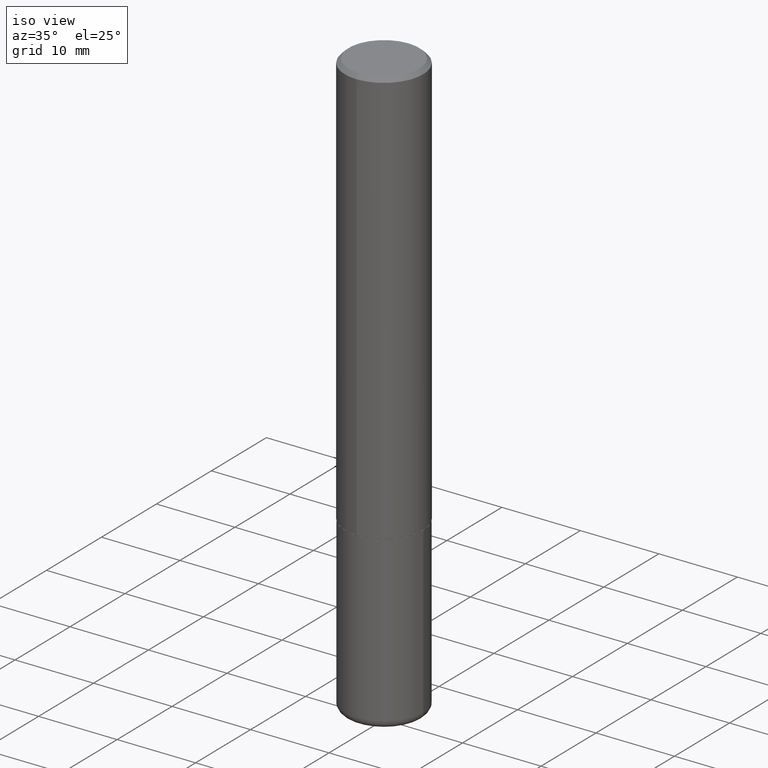
[diagram: clean part render]
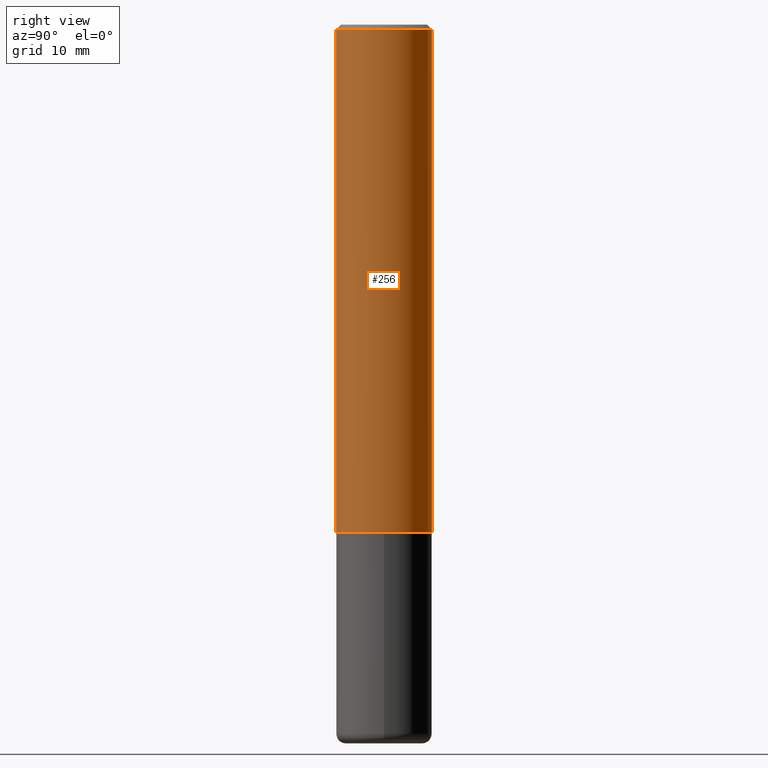
[diagram: tour spotlight — one face highlighted and labeled with its STEP entity id]
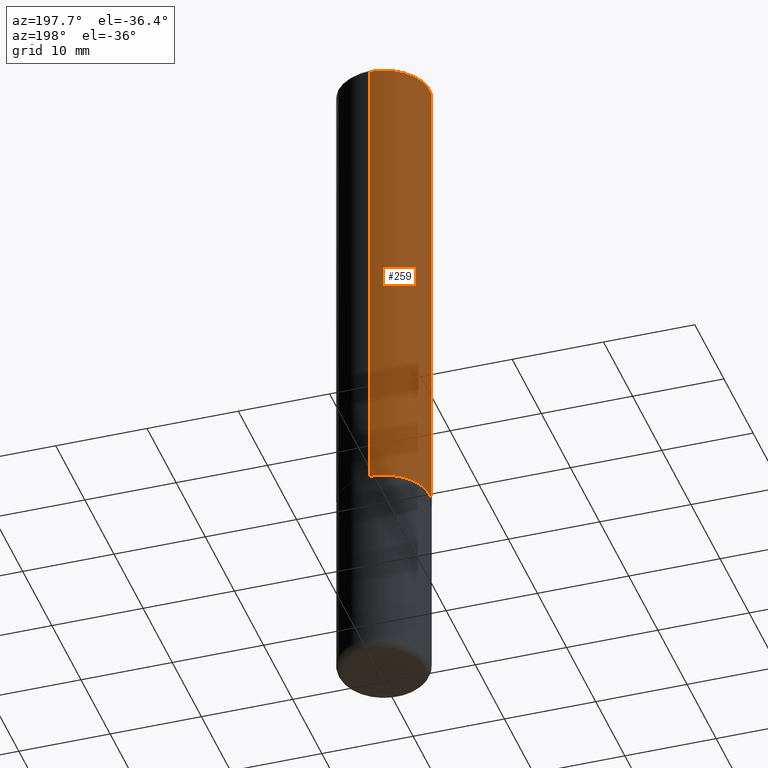
[diagram: tour spotlight — one face highlighted and labeled with its STEP entity id]
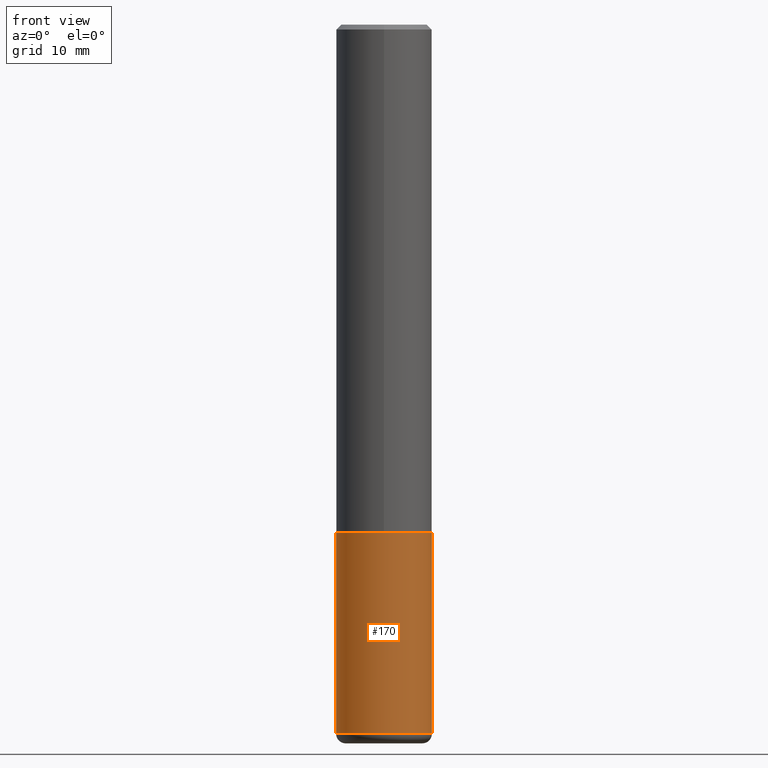
[diagram: tour spotlight — one face highlighted and labeled with its STEP entity id]
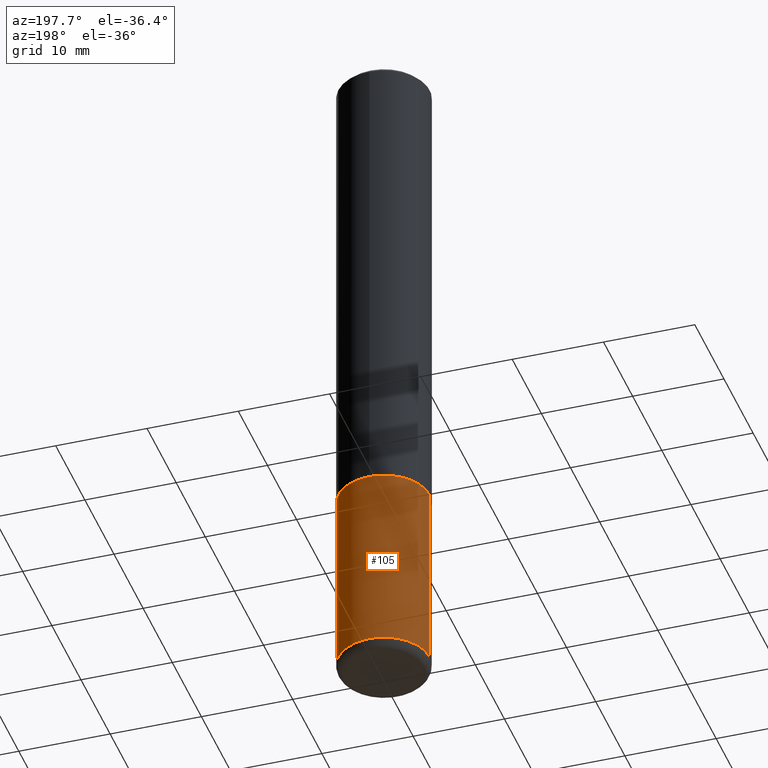
[diagram: tour spotlight — one face highlighted and labeled with its STEP entity id]
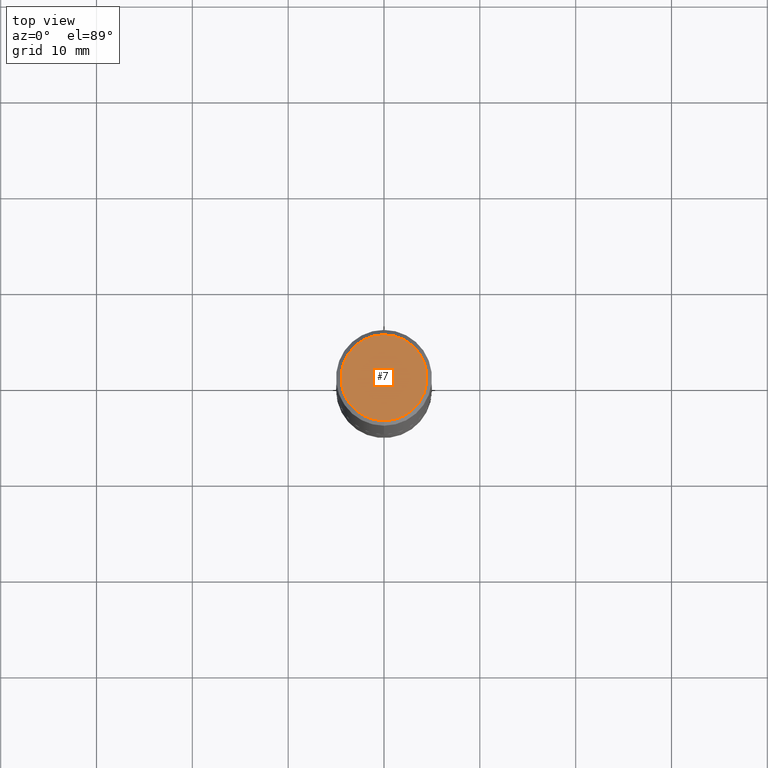
[diagram: tour spotlight — one face highlighted and labeled with its STEP entity id]
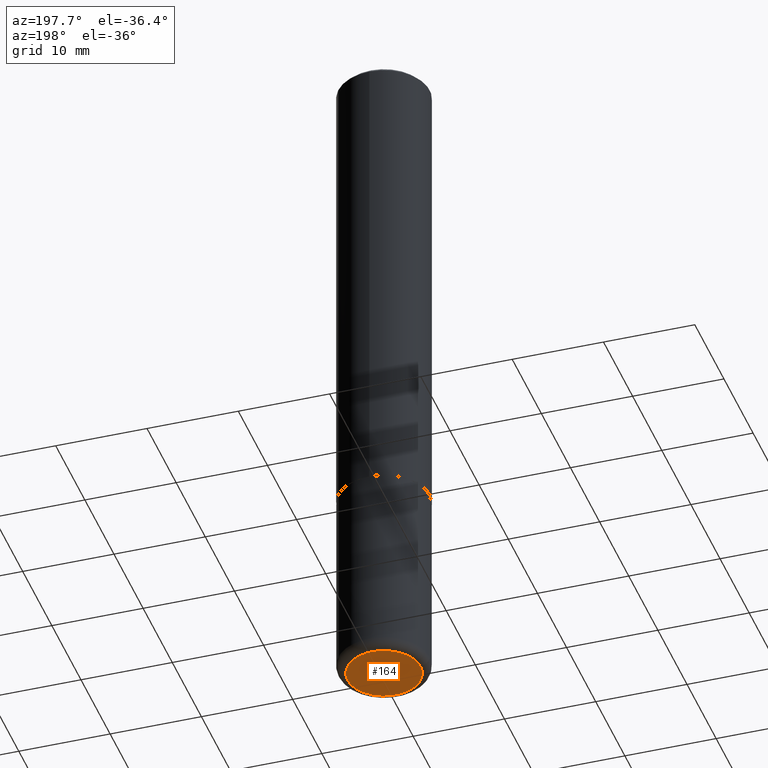
[diagram: tour spotlight — one face highlighted and labeled with its STEP entity id]
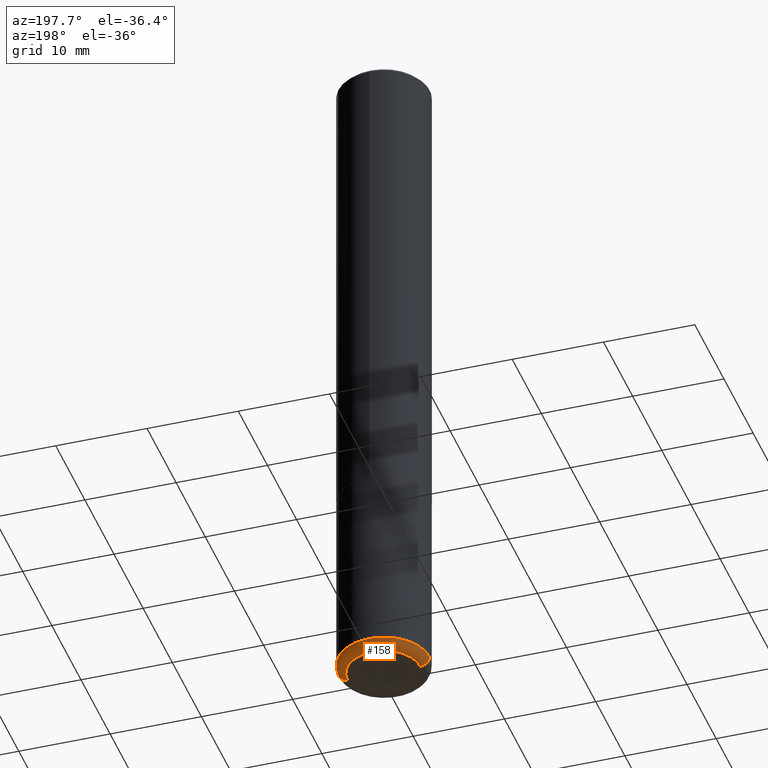
[diagram: tour spotlight — one face highlighted and labeled with its STEP entity id]
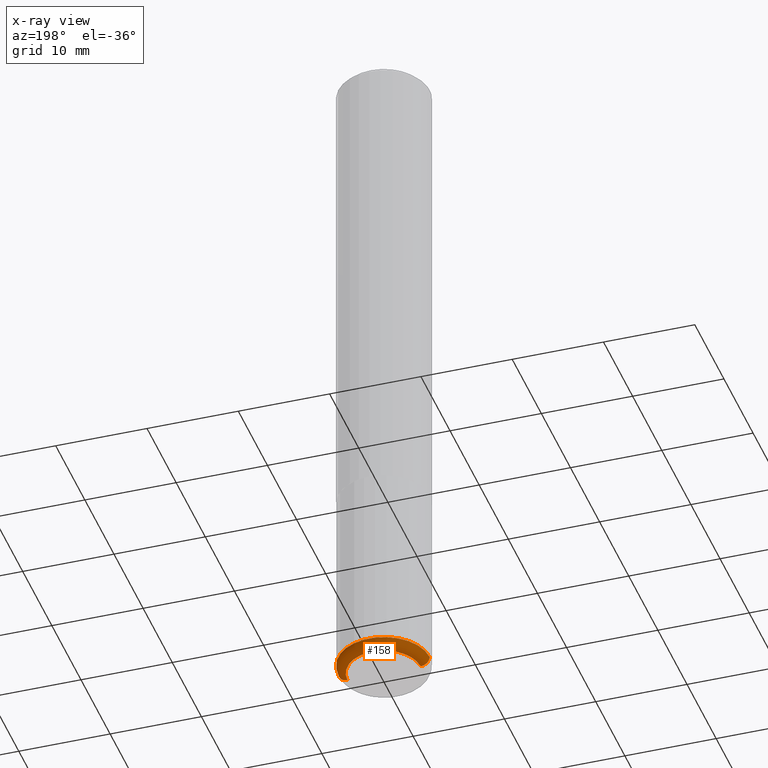
[diagram: x-ray of the same camera — body ghosted, this tour face saturated]
A machine part: a face-by-face anatomy tour. The part has 14 B-rep faces; the first image is the clean iso view, then the 7 largest visible faces are spotlighted one at a time (largest first), each with its STEP entity span.

Face 1 — right view, entity #256. In plain terms, the highlighted cylindrical surface (partial cylindrical patch) has radius 5 mm, axis along (-0, 0, 1).
Definition (entity closure, byte-faithful):
#8 = LINE ( 'NONE', #175, #362 ) ;
#21 = DIRECTION ( 'NONE',  ( -6.982962677686265922E-15, -1.000000000000000000, 4.163344669033670112E-15 ) ) ;
#43 = EDGE_LOOP ( 'NONE', ( #177, #228, #84, #182 ) ) ;
#58 = DIRECTION ( 'NONE',  ( -6.982962677686265922E-15, -1.000000000000000000, 3.492751155082254917E-15 ) ) ;
#65 = CARTESIAN_POINT ( 'NONE',  ( 1.374596203102541608E-15, 0.1968499999999999139, -0.02000000000000072900 ) ) ;
#78 = EDGE_CURVE ( 'NONE', #121, #314, #416, .T. ) ;
#84 = ORIENTED_EDGE ( 'NONE', *, *, #78, .F. ) ;
#86 = CARTESIAN_POINT ( 'NONE',  ( 0.000000000000000000, 0.000000000000000000, 0.000000000000000000 ) ) ;
#94 = VERTEX_POINT ( 'NONE', #388 ) ;
#95 = EDGE_CURVE ( 'NONE', #379, #314, #365, .T. ) ;
#100 = AXIS2_PLACEMENT_3D ( 'NONE', #140, #143, #102 ) ;
#102 = DIRECTION ( 'NONE',  ( -6.982962677686265922E-15, -1.000000000000000000, 3.491137977679280212E-15 ) ) ;
#121 = VERTEX_POINT ( 'NONE', #357 ) ;
#140 = CARTESIAN_POINT ( 'NONE',  ( 4.889164196489240128E-31, -6.985502310164524180E-17, -0.02000000000000004205 ) ) ;
#141 = DIRECTION ( 'NONE',  ( -2.444582098244614651E-29, 3.492751155082255311E-15, 1.000000000000000000 ) ) ;
#143 = DIRECTION ( 'NONE',  ( -2.444582098244614651E-29, 3.492751155082254917E-15, 1.000000000000000000 ) ) ;
#152 = AXIS2_PLACEMENT_3D ( 'NONE', #218, #311, #21 ) ;
#162 = AXIS2_PLACEMENT_3D ( 'NONE', #86, #345, #58 ) ;
#175 = CARTESIAN_POINT ( 'NONE',  ( -1.374596203102542200E-15, -0.1968500000000001082, 6.875480648779422671E-16 ) ) ;
#177 = ORIENTED_EDGE ( 'NONE', *, *, #204, .T. ) ;
#182 = ORIENTED_EDGE ( 'NONE', *, *, #366, .F. ) ;
#204 = EDGE_CURVE ( 'NONE', #94, #379, #249, .T. ) ;
#218 = CARTESIAN_POINT ( 'NONE',  ( 5.098664882308792093E-29, -7.284831084155059258E-15, -2.085699999999999665 ) ) ;
#220 = CYLINDRICAL_SURFACE ( 'NONE', #162, 0.1968500000000001082 ) ;
#221 = VECTOR ( 'NONE', #141, 39.37007874015748143 ) ;
#228 = ORIENTED_EDGE ( 'NONE', *, *, #95, .T. ) ;
#249 = CIRCLE ( 'NONE', #152, 0.1968500000000002470 ) ;
#256 = ADVANCED_FACE ( 'NONE', ( #373 ), #220, .T. ) ;
#267 = CARTESIAN_POINT ( 'NONE',  ( 1.398703375343784214E-15, 0.1968499999999930028, -2.085700000000000554 ) ) ;
#304 = DIRECTION ( 'NONE',  ( -2.444582098244614651E-29, 3.492751155082255311E-15, 1.000000000000000000 ) ) ;
#311 = DIRECTION ( 'NONE',  ( -2.444582098244614651E-29, 3.492751155082254917E-15, 1.000000000000000000 ) ) ;
#314 = VERTEX_POINT ( 'NONE', #65 ) ;
#345 = DIRECTION ( 'NONE',  ( -2.444582098244614651E-29, 3.492751155082254917E-15, 1.000000000000000000 ) ) ;
#357 = CARTESIAN_POINT ( 'NONE',  ( -1.350489030861325232E-15, -0.1968500000000000527, -0.01999999999999935510 ) ) ;
#362 = VECTOR ( 'NONE', #304, 39.37007874015748143 ) ;
#365 = LINE ( 'NONE', #393, #221 ) ;
#366 = EDGE_CURVE ( 'NONE', #94, #121, #8, .T. ) ;
#373 = FACE_OUTER_BOUND ( 'NONE', #43, .T. ) ;
#379 = VERTEX_POINT ( 'NONE', #267 ) ;
#388 = CARTESIAN_POINT ( 'NONE',  ( -1.374596203102492304E-15, -0.1968500000000075190, -2.085699999999999221 ) ) ;
#393 = CARTESIAN_POINT ( 'NONE',  ( 1.398703375343757788E-15, 0.1968500000000001082, -6.875480648779422671E-16 ) ) ;
#416 = CIRCLE ( 'NONE', #100, 0.1968499999999999694 ) ;

Face 2 — auxiliary view, entity #259. In plain terms, the highlighted cylindrical surface (partial cylindrical patch) has radius 5 mm, axis along (-0, 0, 1).
Definition (entity closure, byte-faithful):
#1 = ORIENTED_EDGE ( 'NONE', *, *, #225, .F. ) ;
#8 = LINE ( 'NONE', #175, #362 ) ;
#54 = DIRECTION ( 'NONE',  ( -6.982962677686265922E-15, -1.000000000000000000, 3.491137977679280212E-15 ) ) ;
#65 = CARTESIAN_POINT ( 'NONE',  ( 1.374596203102541608E-15, 0.1968499999999999139, -0.02000000000000072900 ) ) ;
#93 = CYLINDRICAL_SURFACE ( 'NONE', #369, 0.1968500000000001082 ) ;
#94 = VERTEX_POINT ( 'NONE', #388 ) ;
#95 = EDGE_CURVE ( 'NONE', #379, #314, #365, .T. ) ;
#108 = AXIS2_PLACEMENT_3D ( 'NONE', #341, #248, #118 ) ;
#112 = ORIENTED_EDGE ( 'NONE', *, *, #194, .T. ) ;
#118 = DIRECTION ( 'NONE',  ( -6.982962677686265922E-15, -1.000000000000000000, 4.163344669033670112E-15 ) ) ;
#121 = VERTEX_POINT ( 'NONE', #357 ) ;
#123 = CARTESIAN_POINT ( 'NONE',  ( 4.889164196489240128E-31, -6.985502310164524180E-17, -0.02000000000000004205 ) ) ;
#128 = EDGE_LOOP ( 'NONE', ( #398, #112, #312, #1 ) ) ;
#141 = DIRECTION ( 'NONE',  ( -2.444582098244614651E-29, 3.492751155082255311E-15, 1.000000000000000000 ) ) ;
#175 = CARTESIAN_POINT ( 'NONE',  ( -1.374596203102542200E-15, -0.1968500000000001082, 6.875480648779422671E-16 ) ) ;
#180 = CIRCLE ( 'NONE', #108, 0.1968500000000002470 ) ;
#194 = EDGE_CURVE ( 'NONE', #379, #94, #180, .T. ) ;
#202 = DIRECTION ( 'NONE',  ( -6.982962677686265922E-15, -1.000000000000000000, 3.492751155082254917E-15 ) ) ;
#207 = AXIS2_PLACEMENT_3D ( 'NONE', #123, #278, #54 ) ;
#221 = VECTOR ( 'NONE', #141, 39.37007874015748143 ) ;
#224 = CARTESIAN_POINT ( 'NONE',  ( 0.000000000000000000, 0.000000000000000000, 0.000000000000000000 ) ) ;
#225 = EDGE_CURVE ( 'NONE', #314, #121, #344, .T. ) ;
#248 = DIRECTION ( 'NONE',  ( -2.444582098244614651E-29, 3.492751155082254917E-15, 1.000000000000000000 ) ) ;
#257 = FACE_OUTER_BOUND ( 'NONE', #128, .T. ) ;
#259 = ADVANCED_FACE ( 'NONE', ( #257 ), #93, .T. ) ;
#267 = CARTESIAN_POINT ( 'NONE',  ( 1.398703375343784214E-15, 0.1968499999999930028, -2.085700000000000554 ) ) ;
#278 = DIRECTION ( 'NONE',  ( -2.444582098244614651E-29, 3.492751155082254917E-15, 1.000000000000000000 ) ) ;
#304 = DIRECTION ( 'NONE',  ( -2.444582098244614651E-29, 3.492751155082255311E-15, 1.000000000000000000 ) ) ;
#312 = ORIENTED_EDGE ( 'NONE', *, *, #366, .T. ) ;
#314 = VERTEX_POINT ( 'NONE', #65 ) ;
#341 = CARTESIAN_POINT ( 'NONE',  ( 5.098664882308792093E-29, -7.284831084155059258E-15, -2.085699999999999665 ) ) ;
#344 = CIRCLE ( 'NONE', #207, 0.1968499999999999694 ) ;
#346 = DIRECTION ( 'NONE',  ( -2.444582098244614651E-29, 3.492751155082254917E-15, 1.000000000000000000 ) ) ;
#357 = CARTESIAN_POINT ( 'NONE',  ( -1.350489030861325232E-15, -0.1968500000000000527, -0.01999999999999935510 ) ) ;
#362 = VECTOR ( 'NONE', #304, 39.37007874015748143 ) ;
#365 = LINE ( 'NONE', #393, #221 ) ;
#366 = EDGE_CURVE ( 'NONE', #94, #121, #8, .T. ) ;
#369 = AXIS2_PLACEMENT_3D ( 'NONE', #224, #346, #202 ) ;
#379 = VERTEX_POINT ( 'NONE', #267 ) ;
#388 = CARTESIAN_POINT ( 'NONE',  ( -1.374596203102492304E-15, -0.1968500000000075190, -2.085699999999999221 ) ) ;
#393 = CARTESIAN_POINT ( 'NONE',  ( 1.398703375343757788E-15, 0.1968500000000001082, -6.875480648779422671E-16 ) ) ;
#398 = ORIENTED_EDGE ( 'NONE', *, *, #95, .F. ) ;

Face 3 — front view, entity #170. In plain terms, the highlighted cylindrical surface (partial cylindrical patch) has radius 5 mm, axis along (-0, 0, 1).
Definition (entity closure, byte-faithful):
#14 = DIRECTION ( 'NONE',  ( -2.445468806185136597E-29, 3.491481338843145583E-15, 1.000000000000000000 ) ) ;
#15 = DIRECTION ( 'NONE',  ( -2.445468806185136877E-29, 3.491481338843145188E-15, 1.000000000000000000 ) ) ;
#17 = AXIS2_PLACEMENT_3D ( 'NONE', #363, #266, #139 ) ;
#26 = VERTEX_POINT ( 'NONE', #268 ) ;
#34 = EDGE_CURVE ( 'NONE', #241, #253, #135, .T. ) ;
#35 = VECTOR ( 'NONE', #211, 39.37007874015748143 ) ;
#49 = AXIS2_PLACEMENT_3D ( 'NONE', #186, #80, #184 ) ;
#59 = CARTESIAN_POINT ( 'NONE',  ( -0.1968500000000000805, -8.773378357241862315E-15, -2.913399999999999768 ) ) ;
#63 = CIRCLE ( 'NONE', #17, 0.1968500000000000250 ) ;
#75 = EDGE_LOOP ( 'NONE', ( #339, #406, #114, #226 ) ) ;
#80 = DIRECTION ( 'NONE',  ( -2.445468806185136597E-29, 3.491481338843145583E-15, 1.000000000000000000 ) ) ;
#89 = CARTESIAN_POINT ( 'NONE',  ( -0.1968500000000000250, -7.330174545831047333E-15, -2.086699999999999999 ) ) ;
#113 = DIRECTION ( 'NONE',  ( 1.000000000000000000, -6.982962677686266711E-15, 0.000000000000000000 ) ) ;
#114 = ORIENTED_EDGE ( 'NONE', *, *, #265, .T. ) ;
#116 = EDGE_CURVE ( 'NONE', #241, #155, #282, .T. ) ;
#135 = LINE ( 'NONE', #335, #205 ) ;
#139 = DIRECTION ( 'NONE',  ( 1.000000000000000000, -6.982962677686267499E-15, 0.000000000000000000 ) ) ;
#155 = VERTEX_POINT ( 'NONE', #412 ) ;
#170 = ADVANCED_FACE ( 'NONE', ( #288 ), #244, .T. ) ;
#184 = DIRECTION ( 'NONE',  ( 1.000000000000000000, -6.982962677686266711E-15, 4.876176775795935793E-29 ) ) ;
#186 = CARTESIAN_POINT ( 'NONE',  ( 0.000000000000000000, 0.000000000000000000, 0.000000000000000000 ) ) ;
#192 = AXIS2_PLACEMENT_3D ( 'NONE', #399, #14, #113 ) ;
#205 = VECTOR ( 'NONE', #15, 39.37007874015748143 ) ;
#211 = DIRECTION ( 'NONE',  ( -2.445468806185136877E-29, 3.491481338843145188E-15, 1.000000000000000000 ) ) ;
#226 = ORIENTED_EDGE ( 'NONE', *, *, #367, .F. ) ;
#241 = VERTEX_POINT ( 'NONE', #59 ) ;
#244 = CYLINDRICAL_SURFACE ( 'NONE', #49, 0.1968500000000000527 ) ;
#253 = VERTEX_POINT ( 'NONE', #89 ) ;
#265 = EDGE_CURVE ( 'NONE', #155, #26, #389, .T. ) ;
#266 = DIRECTION ( 'NONE',  ( -2.445468806185136597E-29, 3.491481338843145583E-15, 1.000000000000000000 ) ) ;
#268 = CARTESIAN_POINT ( 'NONE',  ( 0.1968500000000000250, -8.660270312866532536E-15, -2.086699999999999999 ) ) ;
#282 = CIRCLE ( 'NONE', #192, 0.1968500000000000527 ) ;
#288 = FACE_OUTER_BOUND ( 'NONE', #75, .T. ) ;
#335 = CARTESIAN_POINT ( 'NONE',  ( -0.1968500000000000527, 1.398703375343757590E-15, -9.682923725166785079E-30 ) ) ;
#339 = ORIENTED_EDGE ( 'NONE', *, *, #34, .F. ) ;
#363 = CARTESIAN_POINT ( 'NONE',  ( 5.102959757866523939E-29, -7.285674109763990928E-15, -2.086699999999999999 ) ) ;
#367 = EDGE_CURVE ( 'NONE', #253, #26, #63, .T. ) ;
#387 = CARTESIAN_POINT ( 'NONE',  ( 0.1968500000000000527, -1.374596203102542003E-15, 9.598753983154302260E-30 ) ) ;
#389 = LINE ( 'NONE', #387, #35 ) ;
#399 = CARTESIAN_POINT ( 'NONE',  ( 7.124628819939776708E-29, -1.017208173258561931E-14, -2.913399999999999768 ) ) ;
#406 = ORIENTED_EDGE ( 'NONE', *, *, #116, .T. ) ;
#412 = CARTESIAN_POINT ( 'NONE',  ( 0.1968500000000000805, -1.154667793568816250E-14, -2.913399999999999768 ) ) ;

Face 4 — auxiliary view, entity #105. In plain terms, the highlighted cylindrical surface (partial cylindrical patch) has radius 5 mm, axis along (-0, 0, 1).
Definition (entity closure, byte-faithful):
#15 = DIRECTION ( 'NONE',  ( -2.445468806185136877E-29, 3.491481338843145188E-15, 1.000000000000000000 ) ) ;
#19 = ORIENTED_EDGE ( 'NONE', *, *, #417, .F. ) ;
#20 = DIRECTION ( 'NONE',  ( 1.000000000000000000, -6.982962677686267499E-15, 0.000000000000000000 ) ) ;
#26 = VERTEX_POINT ( 'NONE', #268 ) ;
#34 = EDGE_CURVE ( 'NONE', #241, #253, #135, .T. ) ;
#35 = VECTOR ( 'NONE', #211, 39.37007874015748143 ) ;
#48 = DIRECTION ( 'NONE',  ( -2.445468806185136597E-29, 3.491481338843145583E-15, 1.000000000000000000 ) ) ;
#51 = CARTESIAN_POINT ( 'NONE',  ( 7.124628819939776708E-29, -1.017208173258561931E-14, -2.913399999999999768 ) ) ;
#52 = ORIENTED_EDGE ( 'NONE', *, *, #34, .T. ) ;
#55 = CIRCLE ( 'NONE', #263, 0.1968500000000000527 ) ;
#59 = CARTESIAN_POINT ( 'NONE',  ( -0.1968500000000000805, -8.773378357241862315E-15, -2.913399999999999768 ) ) ;
#74 = CARTESIAN_POINT ( 'NONE',  ( 0.000000000000000000, 0.000000000000000000, 0.000000000000000000 ) ) ;
#85 = CARTESIAN_POINT ( 'NONE',  ( 5.102959757866523939E-29, -7.285674109763990928E-15, -2.086699999999999999 ) ) ;
#89 = CARTESIAN_POINT ( 'NONE',  ( -0.1968500000000000250, -7.330174545831047333E-15, -2.086699999999999999 ) ) ;
#105 = ADVANCED_FACE ( 'NONE', ( #212 ), #337, .T. ) ;
#117 = AXIS2_PLACEMENT_3D ( 'NONE', #74, #48, #179 ) ;
#135 = LINE ( 'NONE', #335, #205 ) ;
#146 = DIRECTION ( 'NONE',  ( 1.000000000000000000, -6.982962677686266711E-15, 0.000000000000000000 ) ) ;
#155 = VERTEX_POINT ( 'NONE', #412 ) ;
#161 = EDGE_LOOP ( 'NONE', ( #408, #52, #19, #279 ) ) ;
#179 = DIRECTION ( 'NONE',  ( 1.000000000000000000, -6.982962677686266711E-15, 4.876176775795935793E-29 ) ) ;
#188 = AXIS2_PLACEMENT_3D ( 'NONE', #85, #214, #20 ) ;
#205 = VECTOR ( 'NONE', #15, 39.37007874015748143 ) ;
#210 = EDGE_CURVE ( 'NONE', #155, #241, #55, .T. ) ;
#211 = DIRECTION ( 'NONE',  ( -2.445468806185136877E-29, 3.491481338843145188E-15, 1.000000000000000000 ) ) ;
#212 = FACE_OUTER_BOUND ( 'NONE', #161, .T. ) ;
#214 = DIRECTION ( 'NONE',  ( -2.445468806185136597E-29, 3.491481338843145583E-15, 1.000000000000000000 ) ) ;
#241 = VERTEX_POINT ( 'NONE', #59 ) ;
#253 = VERTEX_POINT ( 'NONE', #89 ) ;
#263 = AXIS2_PLACEMENT_3D ( 'NONE', #51, #409, #146 ) ;
#265 = EDGE_CURVE ( 'NONE', #155, #26, #389, .T. ) ;
#268 = CARTESIAN_POINT ( 'NONE',  ( 0.1968500000000000250, -8.660270312866532536E-15, -2.086699999999999999 ) ) ;
#279 = ORIENTED_EDGE ( 'NONE', *, *, #265, .F. ) ;
#335 = CARTESIAN_POINT ( 'NONE',  ( -0.1968500000000000527, 1.398703375343757590E-15, -9.682923725166785079E-30 ) ) ;
#337 = CYLINDRICAL_SURFACE ( 'NONE', #117, 0.1968500000000000527 ) ;
#387 = CARTESIAN_POINT ( 'NONE',  ( 0.1968500000000000527, -1.374596203102542003E-15, 9.598753983154302260E-30 ) ) ;
#389 = LINE ( 'NONE', #387, #35 ) ;
#408 = ORIENTED_EDGE ( 'NONE', *, *, #210, .T. ) ;
#409 = DIRECTION ( 'NONE',  ( -2.445468806185136597E-29, 3.491481338843145583E-15, 1.000000000000000000 ) ) ;
#412 = CARTESIAN_POINT ( 'NONE',  ( 0.1968500000000000805, -1.154667793568816250E-14, -2.913399999999999768 ) ) ;
#417 = EDGE_CURVE ( 'NONE', #26, #253, #418, .T. ) ;
#418 = CIRCLE ( 'NONE', #188, 0.1968500000000000250 ) ;

Face 5 — top view, entity #7. In plain terms, the highlighted planar face has unit normal (0, -0, -1).
Definition (entity closure, byte-faithful):
#7 = ADVANCED_FACE ( 'NONE', ( #176 ), #10, .F. ) ;
#10 = PLANE ( 'NONE',  #97 ) ;
#41 = DIRECTION ( 'NONE',  ( 6.982962677686265922E-15, 1.000000000000000000, -3.492751155082255311E-15 ) ) ;
#56 = VERTEX_POINT ( 'NONE', #271 ) ;
#76 = CARTESIAN_POINT ( 'NONE',  ( 9.336359050222891666E-46, -1.333953107172988205E-31, -3.819204540901722359E-17 ) ) ;
#77 = CARTESIAN_POINT ( 'NONE',  ( 1.234936949548816195E-15, 0.1768500000000000072, -6.367890644808053875E-16 ) ) ;
#92 = ORIENTED_EDGE ( 'NONE', *, *, #395, .T. ) ;
#97 = AXIS2_PLACEMENT_3D ( 'NONE', #77, #303, #41 ) ;
#106 = DIRECTION ( 'NONE',  ( -6.982962677686265922E-15, -1.000000000000000000, 3.492751155082254522E-15 ) ) ;
#110 = DIRECTION ( 'NONE',  ( -2.444582098244614651E-29, 3.492751155082254917E-15, 1.000000000000000000 ) ) ;
#132 = CIRCLE ( 'NONE', #377, 0.1768500000000000072 ) ;
#174 = DIRECTION ( 'NONE',  ( -2.444582098244614651E-29, 3.492751155082254917E-15, 1.000000000000000000 ) ) ;
#176 = FACE_OUTER_BOUND ( 'NONE', #410, .T. ) ;
#178 = DIRECTION ( 'NONE',  ( -6.982962677686265922E-15, -1.000000000000000000, 3.492751155082254522E-15 ) ) ;
#258 = CIRCLE ( 'NONE', #386, 0.1768500000000000072 ) ;
#271 = CARTESIAN_POINT ( 'NONE',  ( 1.304766576325679099E-15, 0.1768500000000000072, -6.558850871853140085E-16 ) ) ;
#293 = VERTEX_POINT ( 'NONE', #385 ) ;
#303 = DIRECTION ( 'NONE',  ( 2.444582098244614091E-29, -3.492751155082255311E-15, -1.000000000000000000 ) ) ;
#347 = EDGE_CURVE ( 'NONE', #293, #56, #132, .T. ) ;
#377 = AXIS2_PLACEMENT_3D ( 'NONE', #76, #174, #178 ) ;
#385 = CARTESIAN_POINT ( 'NONE',  ( -1.281884050883610492E-15, -0.1768500000000000072, 5.795009963672796230E-16 ) ) ;
#386 = AXIS2_PLACEMENT_3D ( 'NONE', #392, #110, #106 ) ;
#392 = CARTESIAN_POINT ( 'NONE',  ( 9.336359050222891666E-46, -1.333953107172988205E-31, -3.819204540901722359E-17 ) ) ;
#395 = EDGE_CURVE ( 'NONE', #56, #293, #258, .T. ) ;
#400 = ORIENTED_EDGE ( 'NONE', *, *, #347, .T. ) ;
#410 = EDGE_LOOP ( 'NONE', ( #92, #400 ) ) ;

Face 6 — auxiliary view, entity #164. In plain terms, the highlighted planar face has unit normal (0, -0, -1).
Definition (entity closure, byte-faithful):
#6 = AXIS2_PLACEMENT_3D ( 'NONE', #160, #154, #289 ) ;
#18 = EDGE_LOOP ( 'NONE', ( #306, #372 ) ) ;
#31 = PLANE ( 'NONE',  #6 ) ;
#46 = EDGE_CURVE ( 'NONE', #185, #98, #384, .T. ) ;
#61 = AXIS2_PLACEMENT_3D ( 'NONE', #187, #313, #83 ) ;
#83 = DIRECTION ( 'NONE',  ( 1.000000000000000000, -6.982962677686265922E-15, 0.000000000000000000 ) ) ;
#98 = VERTEX_POINT ( 'NONE', #390 ) ;
#120 = FACE_OUTER_BOUND ( 'NONE', #18, .T. ) ;
#125 = CIRCLE ( 'NONE', #61, 0.1574500000000000066 ) ;
#151 = AXIS2_PLACEMENT_3D ( 'NONE', #397, #238, #264 ) ;
#154 = DIRECTION ( 'NONE',  ( 2.438088387897960049E-29, -3.491481338843145188E-15, -1.000000000000000000 ) ) ;
#160 = CARTESIAN_POINT ( 'NONE',  ( 7.220980290903470182E-29, -1.030964609733603853E-14, -2.952799999999999869 ) ) ;
#164 = ADVANCED_FACE ( 'NONE', ( #120 ), #31, .T. ) ;
#185 = VERTEX_POINT ( 'NONE', #378 ) ;
#187 = CARTESIAN_POINT ( 'NONE',  ( 7.220980290903470182E-29, -1.030964609733603853E-14, -2.952799999999999869 ) ) ;
#230 = EDGE_CURVE ( 'NONE', #98, #185, #125, .T. ) ;
#238 = DIRECTION ( 'NONE',  ( -2.445468806185136597E-29, 3.491481338843145583E-15, 1.000000000000000000 ) ) ;
#264 = DIRECTION ( 'NONE',  ( 1.000000000000000000, -6.982962677686265922E-15, 0.000000000000000000 ) ) ;
#289 = DIRECTION ( 'NONE',  ( -1.000000000000000000, 6.982962677686265922E-15, -4.876176775795935793E-29 ) ) ;
#306 = ORIENTED_EDGE ( 'NONE', *, *, #46, .F. ) ;
#313 = DIRECTION ( 'NONE',  ( -2.445468806185136597E-29, 3.491481338843145583E-15, 1.000000000000000000 ) ) ;
#372 = ORIENTED_EDGE ( 'NONE', *, *, #230, .F. ) ;
#378 = CARTESIAN_POINT ( 'NONE',  ( 0.1574500000000000066, -1.140911357093774171E-14, -2.952799999999999869 ) ) ;
#384 = CIRCLE ( 'NONE', #151, 0.1574500000000000066 ) ;
#390 = CARTESIAN_POINT ( 'NONE',  ( -0.1574500000000000066, -8.982137458561812020E-15, -2.952799999999999869 ) ) ;
#397 = CARTESIAN_POINT ( 'NONE',  ( 7.220980290903470182E-29, -1.030964609733603853E-14, -2.952799999999999869 ) ) ;

Face 7 — auxiliary view, entity #158. An x-ray twin of the same camera follows (body ghosted, this face saturated) — the face is partly hidden behind the body. In plain terms, the highlighted toroidal blend (fillet) surface has major radius 3.9992 mm and minor (blend) radius 1.0008 mm.
Definition (entity closure, byte-faithful):
#29 = DIRECTION ( 'NONE',  ( -2.445468806185136597E-29, 3.491481338843145583E-15, 1.000000000000000000 ) ) ;
#36 = ORIENTED_EDGE ( 'NONE', *, *, #331, .F. ) ;
#37 = ORIENTED_EDGE ( 'NONE', *, *, #210, .F. ) ;
#46 = EDGE_CURVE ( 'NONE', #185, #98, #384, .T. ) ;
#51 = CARTESIAN_POINT ( 'NONE',  ( 7.124628819939776708E-29, -1.017208173258561931E-14, -2.913399999999999768 ) ) ;
#55 = CIRCLE ( 'NONE', #263, 0.1968500000000000527 ) ;
#59 = CARTESIAN_POINT ( 'NONE',  ( -0.1968500000000000805, -8.773378357241862315E-15, -2.913399999999999768 ) ) ;
#98 = VERTEX_POINT ( 'NONE', #390 ) ;
#146 = DIRECTION ( 'NONE',  ( 1.000000000000000000, -6.982962677686266711E-15, 0.000000000000000000 ) ) ;
#151 = AXIS2_PLACEMENT_3D ( 'NONE', #397, #238, #264 ) ;
#155 = VERTEX_POINT ( 'NONE', #412 ) ;
#157 = ORIENTED_EDGE ( 'NONE', *, *, #46, .T. ) ;
#158 = ADVANCED_FACE ( 'NONE', ( #317 ), #261, .T. ) ;
#172 = AXIS2_PLACEMENT_3D ( 'NONE', #299, #269, #296 ) ;
#185 = VERTEX_POINT ( 'NONE', #378 ) ;
#189 = EDGE_LOOP ( 'NONE', ( #157, #251, #37, #36 ) ) ;
#191 = DIRECTION ( 'NONE',  ( 1.000000000000000000, -6.982962677686264344E-15, 4.883557194083112340E-29 ) ) ;
#193 = EDGE_CURVE ( 'NONE', #98, #241, #239, .T. ) ;
#210 = EDGE_CURVE ( 'NONE', #155, #241, #55, .T. ) ;
#217 = DIRECTION ( 'NONE',  ( 7.105427357601001859E-15, 1.000000000000000000, -3.491481338843145583E-15 ) ) ;
#238 = DIRECTION ( 'NONE',  ( -2.445468806185136597E-29, 3.491481338843145583E-15, 1.000000000000000000 ) ) ;
#239 = CIRCLE ( 'NONE', #270, 0.03940000000000009467 ) ;
#241 = VERTEX_POINT ( 'NONE', #59 ) ;
#251 = ORIENTED_EDGE ( 'NONE', *, *, #193, .T. ) ;
#261 = TOROIDAL_SURFACE ( 'NONE', #350, 0.1574500000000000066, 0.03940000000000008079 ) ;
#263 = AXIS2_PLACEMENT_3D ( 'NONE', #51, #409, #146 ) ;
#264 = DIRECTION ( 'NONE',  ( 1.000000000000000000, -6.982962677686265922E-15, 0.000000000000000000 ) ) ;
#269 = DIRECTION ( 'NONE',  ( -6.982962677686266711E-15, -1.000000000000000000, 3.491481338843145583E-15 ) ) ;
#270 = AXIS2_PLACEMENT_3D ( 'NONE', #281, #217, #370 ) ;
#281 = CARTESIAN_POINT ( 'NONE',  ( -0.1574500000000000066, -9.053332195131342510E-15, -2.913399999999999768 ) ) ;
#291 = CIRCLE ( 'NONE', #172, 0.03940000000000009467 ) ;
#296 = DIRECTION ( 'NONE',  ( 1.000000000000000000, -6.982962677686261189E-15, 0.000000000000000000 ) ) ;
#299 = CARTESIAN_POINT ( 'NONE',  ( 0.1574500000000000066, -1.127154920618732249E-14, -2.913399999999999768 ) ) ;
#317 = FACE_OUTER_BOUND ( 'NONE', #189, .T. ) ;
#320 = CARTESIAN_POINT ( 'NONE',  ( 7.124628819939776708E-29, -1.017208173258561931E-14, -2.913399999999999768 ) ) ;
#331 = EDGE_CURVE ( 'NONE', #185, #155, #291, .T. ) ;
#350 = AXIS2_PLACEMENT_3D ( 'NONE', #320, #29, #191 ) ;
#370 = DIRECTION ( 'NONE',  ( -1.000000000000000000, 7.105427357601008170E-15, 0.000000000000000000 ) ) ;
#378 = CARTESIAN_POINT ( 'NONE',  ( 0.1574500000000000066, -1.140911357093774171E-14, -2.952799999999999869 ) ) ;
#384 = CIRCLE ( 'NONE', #151, 0.1574500000000000066 ) ;
#390 = CARTESIAN_POINT ( 'NONE',  ( -0.1574500000000000066, -8.982137458561812020E-15, -2.952799999999999869 ) ) ;
#397 = CARTESIAN_POINT ( 'NONE',  ( 7.220980290903470182E-29, -1.030964609733603853E-14, -2.952799999999999869 ) ) ;
#409 = DIRECTION ( 'NONE',  ( -2.445468806185136597E-29, 3.491481338843145583E-15, 1.000000000000000000 ) ) ;
#412 = CARTESIAN_POINT ( 'NONE',  ( 0.1968500000000000805, -1.154667793568816250E-14, -2.913399999999999768 ) ) ;